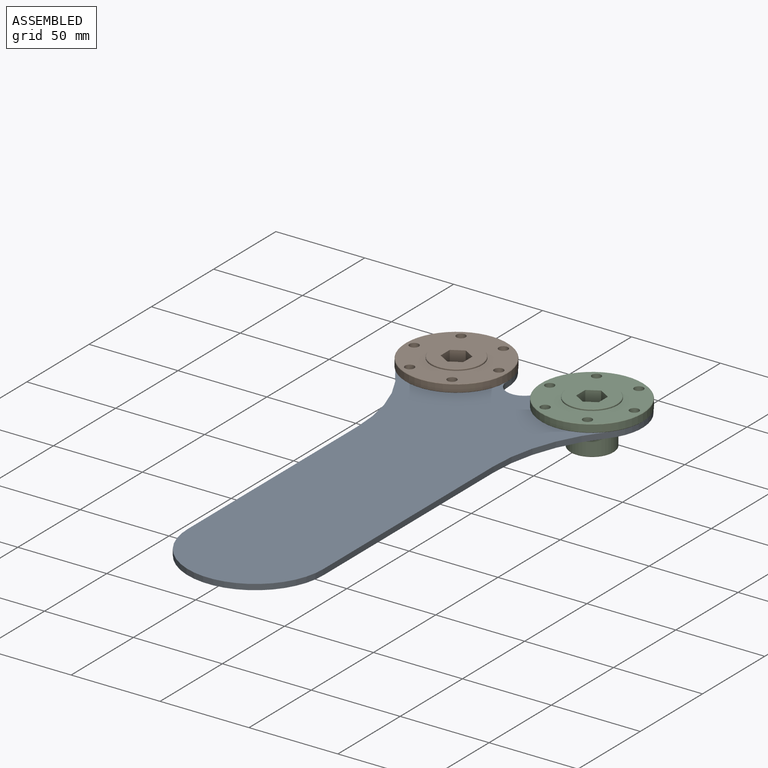
[diagram: assembled view]
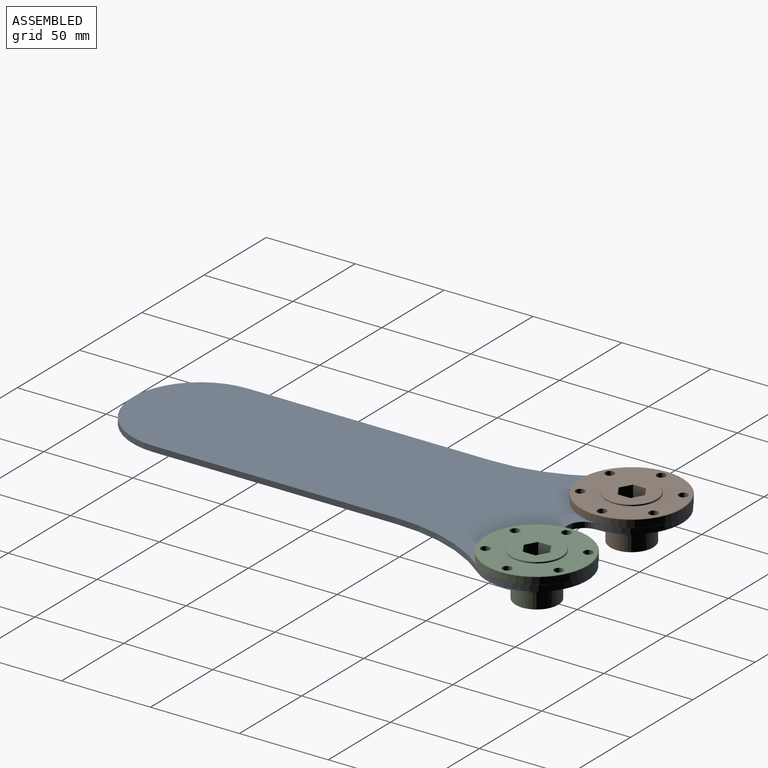
[diagram: assembled view, second angle]
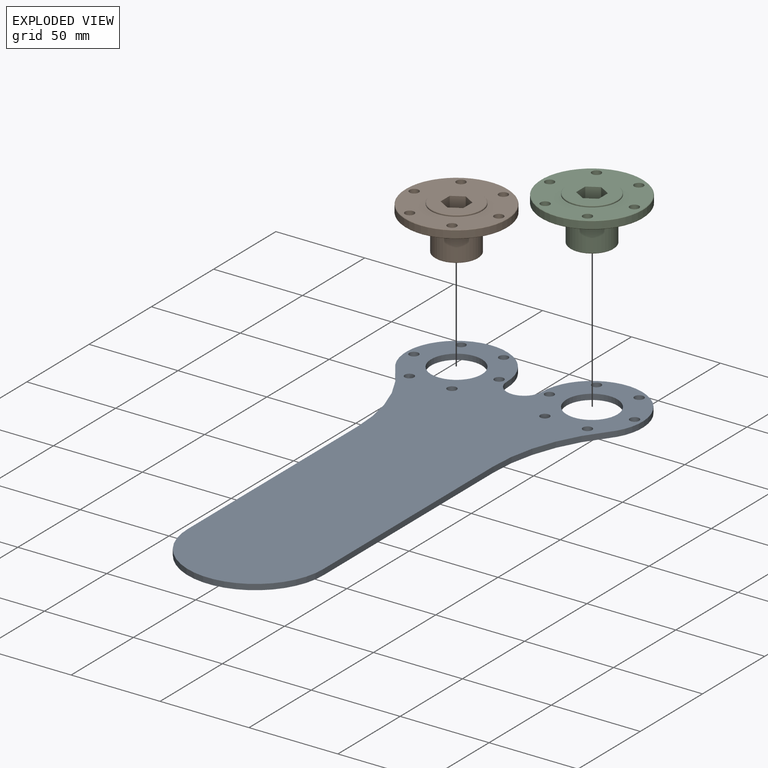
[diagram: exploded view]
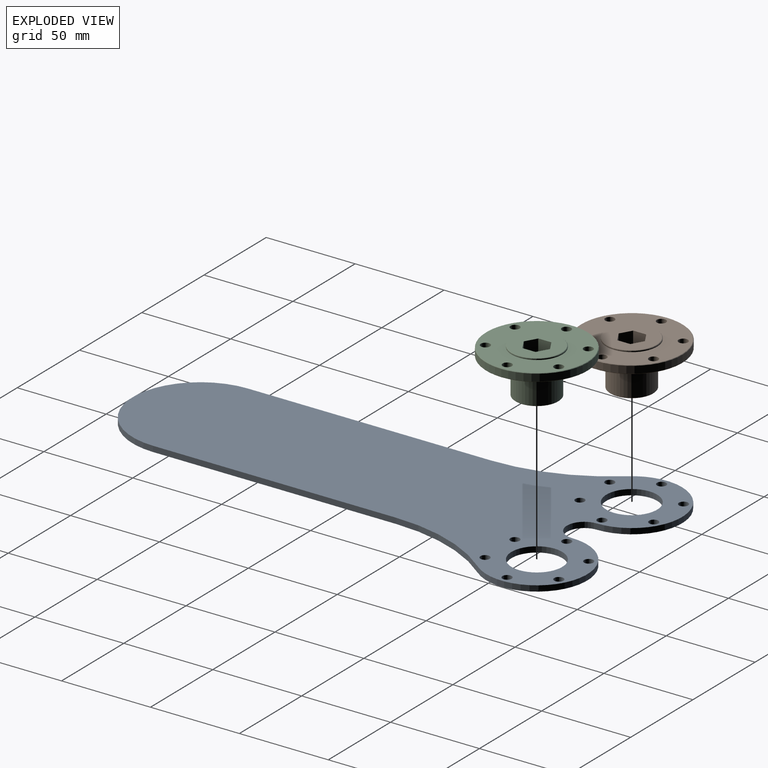
[diagram: exploded view, second angle]
ASSEMBLY  parts=3 mates=2
PART A: 24 faces, bbox 132.8x282.3x3.2 mm
  f0: plane 136.78x3.18mm, normal (1,0,0), area 434.3mm2, adj f1,f20,f22,f23
  f1: cylinder r=96.36mm len=61.15mm, axis (0,0,-1), area 210.3mm2, adj f0,f2,f22,f23
  f2: cylinder r=28.32mm len=56.64mm, axis (0,0,-1), area 344.3mm2, adj f1,f3,f22,f23
  f3: cylinder r=9.78mm len=19.56mm, axis (0,0,-1), area 97.5mm2, adj f2,f4,f22,f23
  f4: cylinder r=28.32mm len=56.64mm, axis (0,0,-1), area 344.3mm2, adj f3,f5,f22,f23
  f5: cylinder r=96.36mm len=61.15mm, axis (0,0,-1), area 210.3mm2, adj f4,f6,f22,f23
  f6: plane 136.78x3.18mm, normal (-1,0,0), area 434.3mm2, adj f5,f20,f22,f23
  f7: cylinder r=2.59mm len=5.18mm, axis (0,0,-1), area 51.7mm2, adj f22,f23
  f8: cylinder r=2.59mm len=5.18mm, axis (0,0,-1), area 51.7mm2, adj f22,f23
  f9: cylinder r=2.59mm len=5.18mm, axis (0,0,-1), area 51.7mm2, adj f22,f23
  f10: cylinder r=2.59mm len=5.18mm, axis (0,0,-1), area 51.7mm2, adj f22,f23
  f11: cylinder r=2.59mm len=5.18mm, axis (0,0,-1), area 51.7mm2, adj f22,f23
  f12: cylinder r=2.59mm len=5.18mm, axis (0,0,-1), area 51.7mm2, adj f22,f23
  f13: cylinder r=2.59mm len=5.18mm, axis (0,0,-1), area 51.7mm2, adj f22,f23
  f14: cylinder r=2.59mm len=5.18mm, axis (0,0,-1), area 51.7mm2, adj f22,f23
  f15: cylinder r=2.59mm len=5.18mm, axis (0,0,-1), area 51.7mm2, adj f22,f23
  f16: cylinder r=2.59mm len=5.18mm, axis (0,0,-1), area 51.7mm2, adj f22,f23
  f17: cylinder r=2.59mm len=5.18mm, axis (0,0,-1), area 51.7mm2, adj f22,f23
  f18: cylinder r=14.29mm len=28.58mm, axis (0,0,-1), area 285mm2, adj f22,f23
  f19: cylinder r=14.29mm len=28.58mm, axis (0,0,-1), area 285mm2, adj f22,f23
  f20: cylinder r=38.1mm len=76.2mm, axis (0,0,-1), area 380mm2, adj f0,f6,f22,f23
  f21: cylinder r=2.59mm len=5.18mm, axis (0,0,-1), area 51.7mm2, adj f22,f23
  f22: plane 282.32x132.84mm, normal (0,0,1), area 21357.8mm2, adj f0,f1,f2,f3,f4,f5,f6,f7
  f23: plane 282.32x132.84mm, normal (0,0,-1), area 21357.8mm2, adj f0,f1,f2,f3,f4,f5,f6,f7
PART B: 27 faces, bbox 25.4x57.2x57.2 mm
  f0: cone r=11.91mm half-angle=45deg, axis (-1,0,0), area 27.2mm2, adj f8,f18
  f1: cone r=28.57mm half-angle=45deg, axis (-1,0,0), area 64.2mm2, adj f15,f25
  f2: cone r=28.32mm half-angle=45deg, axis (1,0,0), area 64.2mm2, adj f15,f26
  f3: cone r=14.29mm half-angle=45deg, axis (-1,0,0), area 32mm2, adj f7,f17
  f4: cone r=14.03mm half-angle=45deg, axis (1,0,0), area 32mm2, adj f6,f16
  f5: cone r=12.17mm half-angle=45deg, axis (-1,0,0), area 90.8mm2, adj f8,f17
  f6: cylinder r=14.29mm len=28.58mm, axis (1,0,0), area 57mm2, adj f4,f26
  f7: cylinder r=14.29mm len=28.58mm, axis (1,0,0), area 57mm2, adj f3,f25
  f8: cylinder r=12.17mm len=24.33mm, axis (-1,0,0), area 1374.7mm2, adj f0,f5
  f9: cylinder r=2.59mm len=5.18mm, axis (1,0,0), area 74.4mm2, adj f25,f26
  f10: cylinder r=2.59mm len=5.18mm, axis (1,0,0), area 74.4mm2, adj f25,f26
  f11: cylinder r=2.59mm len=5.18mm, axis (1,0,0), area 74.4mm2, adj f25,f26
  f12: cylinder r=2.59mm len=5.18mm, axis (1,0,0), area 74.4mm2, adj f25,f26
  f13: cylinder r=2.59mm len=5.18mm, axis (1,0,0), area 74.4mm2, adj f25,f26
  f14: cylinder r=2.59mm len=5.18mm, axis (1,0,0), area 74.4mm2, adj f25,f26
  f15: cylinder r=28.57mm len=57.15mm, axis (-1,0,0), area 729.7mm2, adj f1,f2
  f16: plane 28.07x28.07mm, normal (-1,0,0), area 477.9mm2, adj f4,f19,f20,f21,f22,f23,f24
  f17: plane 28.07x28.07mm, normal (1,0,0), area 89.5mm2, adj f3,f5
  f18: plane 23.83x23.83mm, normal (1,0,0), area 305mm2, adj f0,f19,f20,f21,f22,f23,f24
  f19: plane 25.4x6.38mm, normal (0,0.87,-0.5), area 187mm2, adj f16,f18,f20,f24
  f20: plane 25.4x7.36mm, normal (0,0,-1), area 187mm2, adj f16,f18,f19,f21
  f21: plane 25.4x6.38mm, normal (0,-0.87,-0.5), area 187mm2, adj f16,f18,f20,f22
  f22: plane 25.4x6.38mm, normal (0,-0.87,0.5), area 187mm2, adj f16,f18,f21,f23
  f23: plane 25.4x7.36mm, normal (0,0,1), area 187mm2, adj f16,f18,f22,f24
  f24: plane 25.4x6.38mm, normal (0,0.87,0.5), area 187mm2, adj f16,f18,f19,f23
  f25: plane 56.64x56.64mm, normal (1,0,0), area 1752mm2, adj f1,f7,f9,f10,f11,f12,f13,f14
  f26: plane 56.64x56.64mm, normal (-1,0,0), area 1752mm2, adj f2,f6,f9,f10,f11,f12,f13,f14
PART C: same geometry as B
PLACE A t=(-78.87,33.76,-51.9)mm fixed
PLACE B rot(axis=(0,1,0),90deg) t=(-116.97,33.76,-62.65)mm
PLACE C rot(axis=(0.71,0,-0.71),180deg) t=(-40.77,33.76,-62.65)mm
MATE fastened B.f0 <-> A.f19  axis (0,0,-1) through (-116.97,33.76,-48.73)mm
MATE fastened C.f0 <-> A.f18  axis (0,0,-1) through (-40.77,33.76,-48.73)mm
